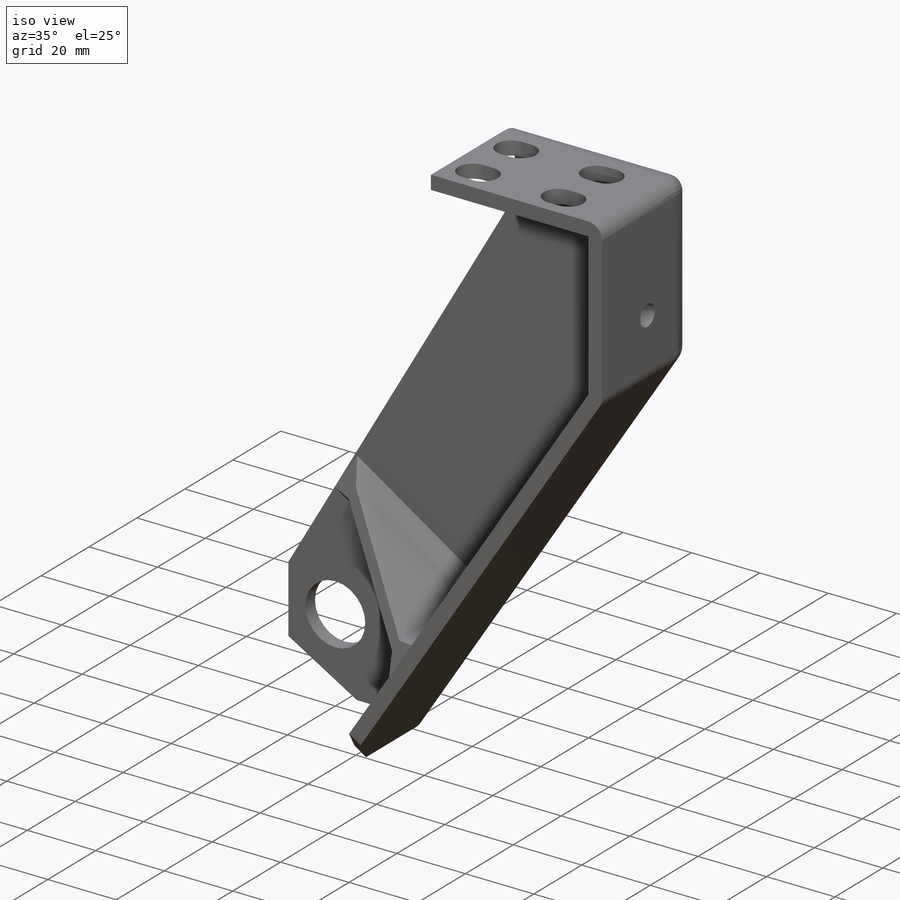
[diagram: iso view]
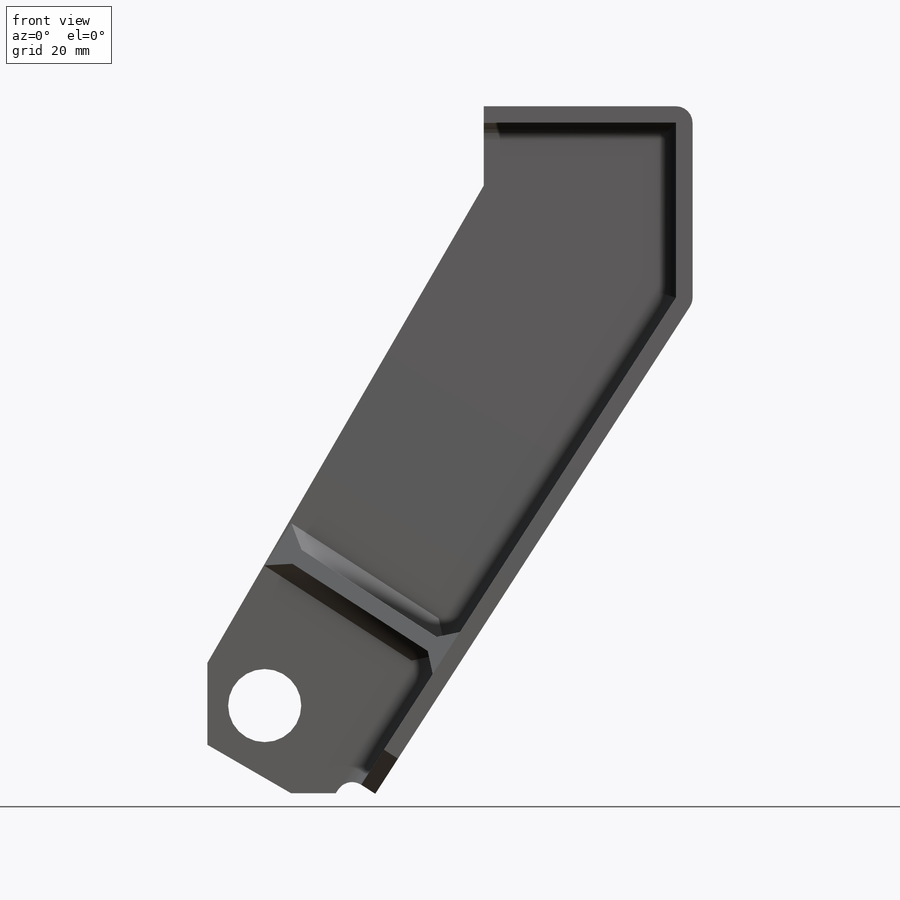
[diagram: front view]
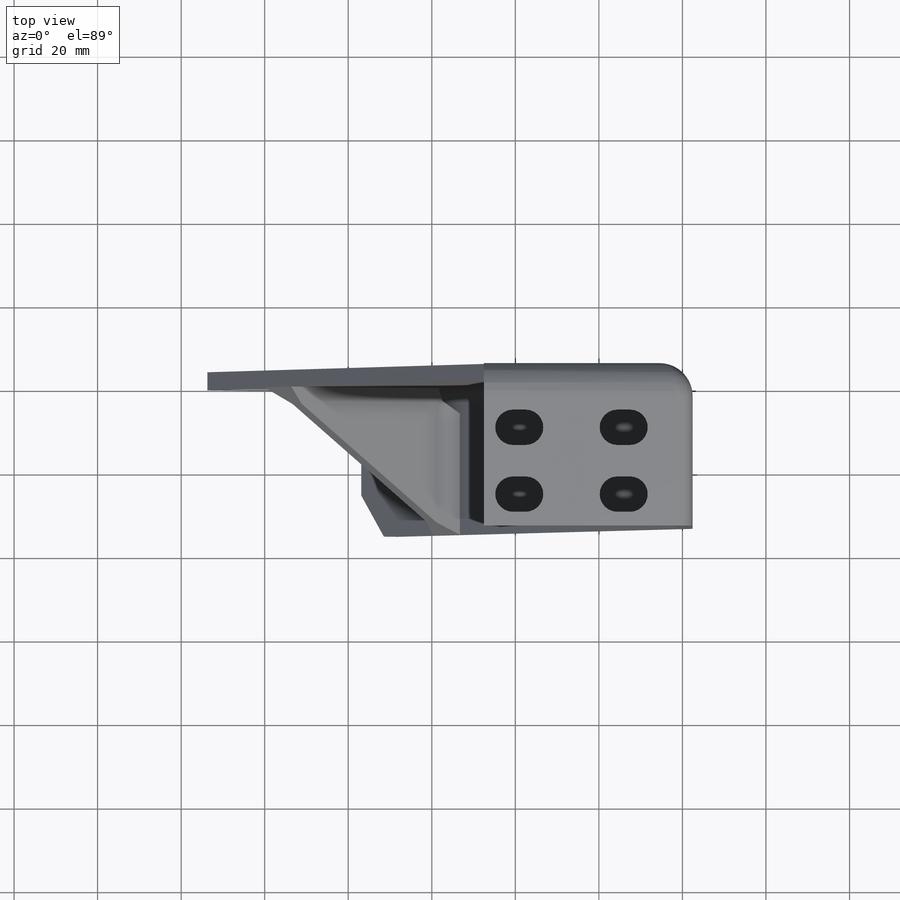
[diagram: top view]
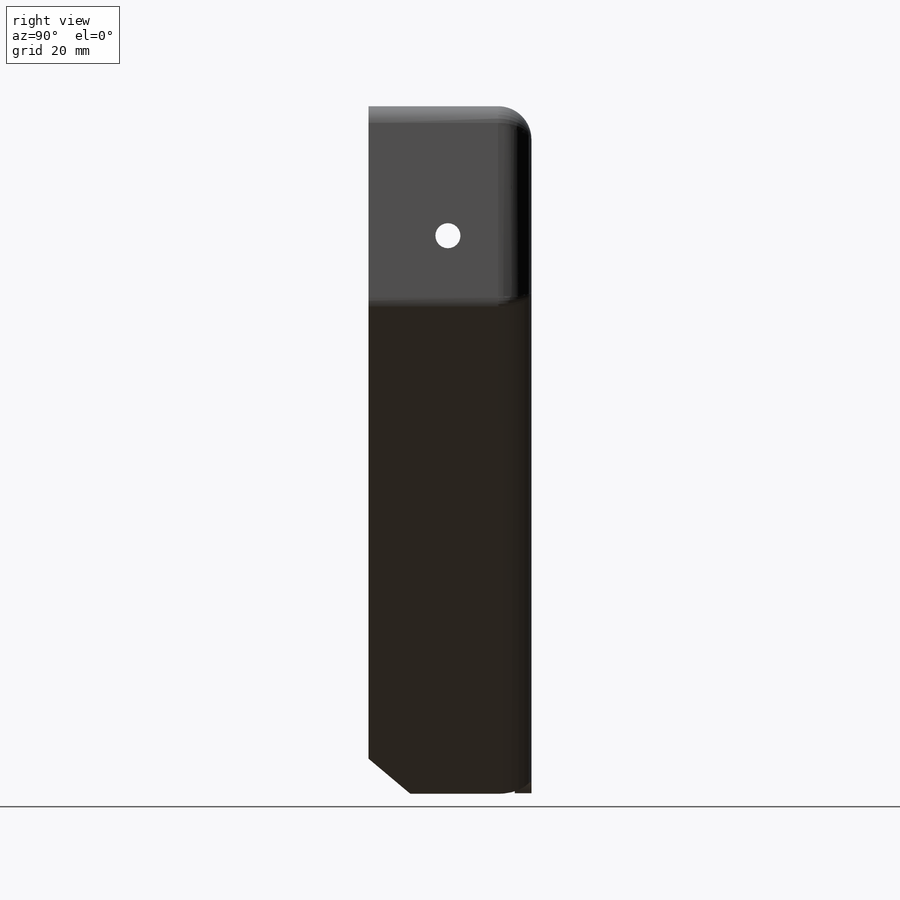
[diagram: right view]
SOLIDWORKS PART (.sldprt)
format: sldprt  version: not decoded by parser v0  size: 1,330,688 bytes
history: native  units: mm
features: sketch x14, sheet_metal_op x7, mirror x6, cut_extrude x5, material x4, fillet x2, chamfer x2, plane x1, extrude x1 + 3 further entries (+15 scaffold rows collapsed)
feature tree (60):
  scaffold x15  (default folders/planes/origin — collapsed)
  material  "Ст 3 ГОСТ 380-2005"
  material  "PTricksFreeParameters"
  material  "PTricksEqu"
  material  "PTricksFreeParameters"
  plane  "Спереди"
  "Начало координат"
  sketch  "Эскиз1"  dims[c1.D9=47.0mm c1.D1=15.0mm c1.D2=17.0mm c1.D3=149.0mm c1.D4=19.0mm c1.D5=50.0mm c1.D6=50.0mm c1.D7=47.0mm c1.D8=32.5mm c2.D8=~32.860562deg c2.D10=~75.931761mm c2.D11=150.0mm c2.D12=~143.482571mm c2.D13=19.0mm c3.D13=~30.070952deg]
  sheet_metal_op  "Листовой металл1"  Толщина=4mm
  sheet_metal_op  "Базовая кромка1"
  sketch  "Эскиз9"
  sketch  "Эскиз10"
  sketch  "Эскиз11"  dims[D1=4.0mm D4=90.0deg D5=1.0 D8=2.0mm D9=2.0mm]
  sheet_metal_op  "EdgeBend2"
  sheet_metal_op  "EdgeBend3"
  sketch  "Эскиз12"  dims[D1=17.0mm D2=~9.843044mm D3=17.0mm D4=~10.140822mm]
  sketch  "Эскиз13"  dims[D1=10.0mm]
  cut_extrude  "Вытянуть1"  [1 undecoded]
  fillet  "Скругление1"  Radius=4mm
  sketch  "Эскиз14"  dims[c1.D1=17.5mm c1.D2=47.0mm c1.D3=47.0mm c1.D6=17.5mm c2.D3=~125.931761mm c2.D4=4.0mm c2.D5=8.0mm c2.D6=~52.431761mm]
  cut_extrude  "Вытянуть2"  [1 undecoded]
  sketch  "Эскиз15"  dims[D3=6.0mm D1=42.0mm]
  extrude  "Вытянуть3"  [1 undecoded]
  sketch  "Эскиз16"  dims[c1.D2=15.0mm c1.D5=~1.707757mm c1.D1=2.0mm c1.D3=16.0mm c1.D4=25.0mm c2.D5=11.5mm c2.D6=8.5mm c2.D7=3.0mm c2.D8=1.0mm c2.D1=1.0mm c3.D8=25.0mm c3.D9=16.0mm c3.D10=8.5mm c3.D11=15.5mm c3.D12=21.0mm c3.D13=31.0mm]
  cut_extrude  "Вытянуть4"  Depth=6mm
  fillet  "Скругленный шов3"  Radius=6mm
  chamfer  "Фаска1"  Distance=10mm Angle=45deg
  sketch  "Эскиз20"  dims[c1.D1=~8.692568mm c1.D3=6.0mm c2.D1=31.0mm c2.D2=19.0mm]
  cut_extrude  "Вытянуть6"  [1 undecoded]
  sketch  "Эскиз17"  dims[c1.D5=8.0mm c1.D7=8.0mm c1.D1=25.0mm c1.D2=16.0mm c1.D3=20.93mm c1.D4=15.5mm c1.D6=23.5mm c2.D7=~84.361761mm c2.D8=7.5mm]
  mirror  "Зеркальное отражение2"
  sheet_metal_op  "Зеркальное отражение сгиба4"
  sheet_metal_op  "Зеркальное отражение сгиба5"
  sheet_metal_op  "Зеркальное отражение сгиба6"
  chamfer  "Зеркальное отражение3"  [1 undecoded]
  sketch  "Эскиз18"  dims[D1=2.0mm D2=2.0mm D3=2.0mm]
  cut_extrude  "Вытянуть5"  [1 undecoded]
  sketch  "Эскиз19"  dims[D1=0.0mm D2=0.0mm D3=0.0mm D4=0.0mm]
  "Развертка1"
  sketch  "Сгиб-Линии1"
  "Преобразование эскиза1"
  mirror  "Плоское состояние-<EdgeBend2>1"
  mirror  "Плоское состояние-<EdgeBend3>1"
  mirror  "Плоское состояние-<Зеркальное отражение сгиба4>1"
  mirror  "Плоское состояние-<Зеркальное отражение сгиба5>1"
  mirror  "Плоское состояние-<Зеркальное отражение сгиба6>1"
decode coverage: 16 of 37 modeling features carry decoded parameters; 3 rows unclassified (native names shown)
note: ~ marks probable driven/reference dimensions
note: 6 parameter values undecoded
summary: no parameter record found for 6 features
note: suppression state not decoded; provenance and decode notes live in map.json
